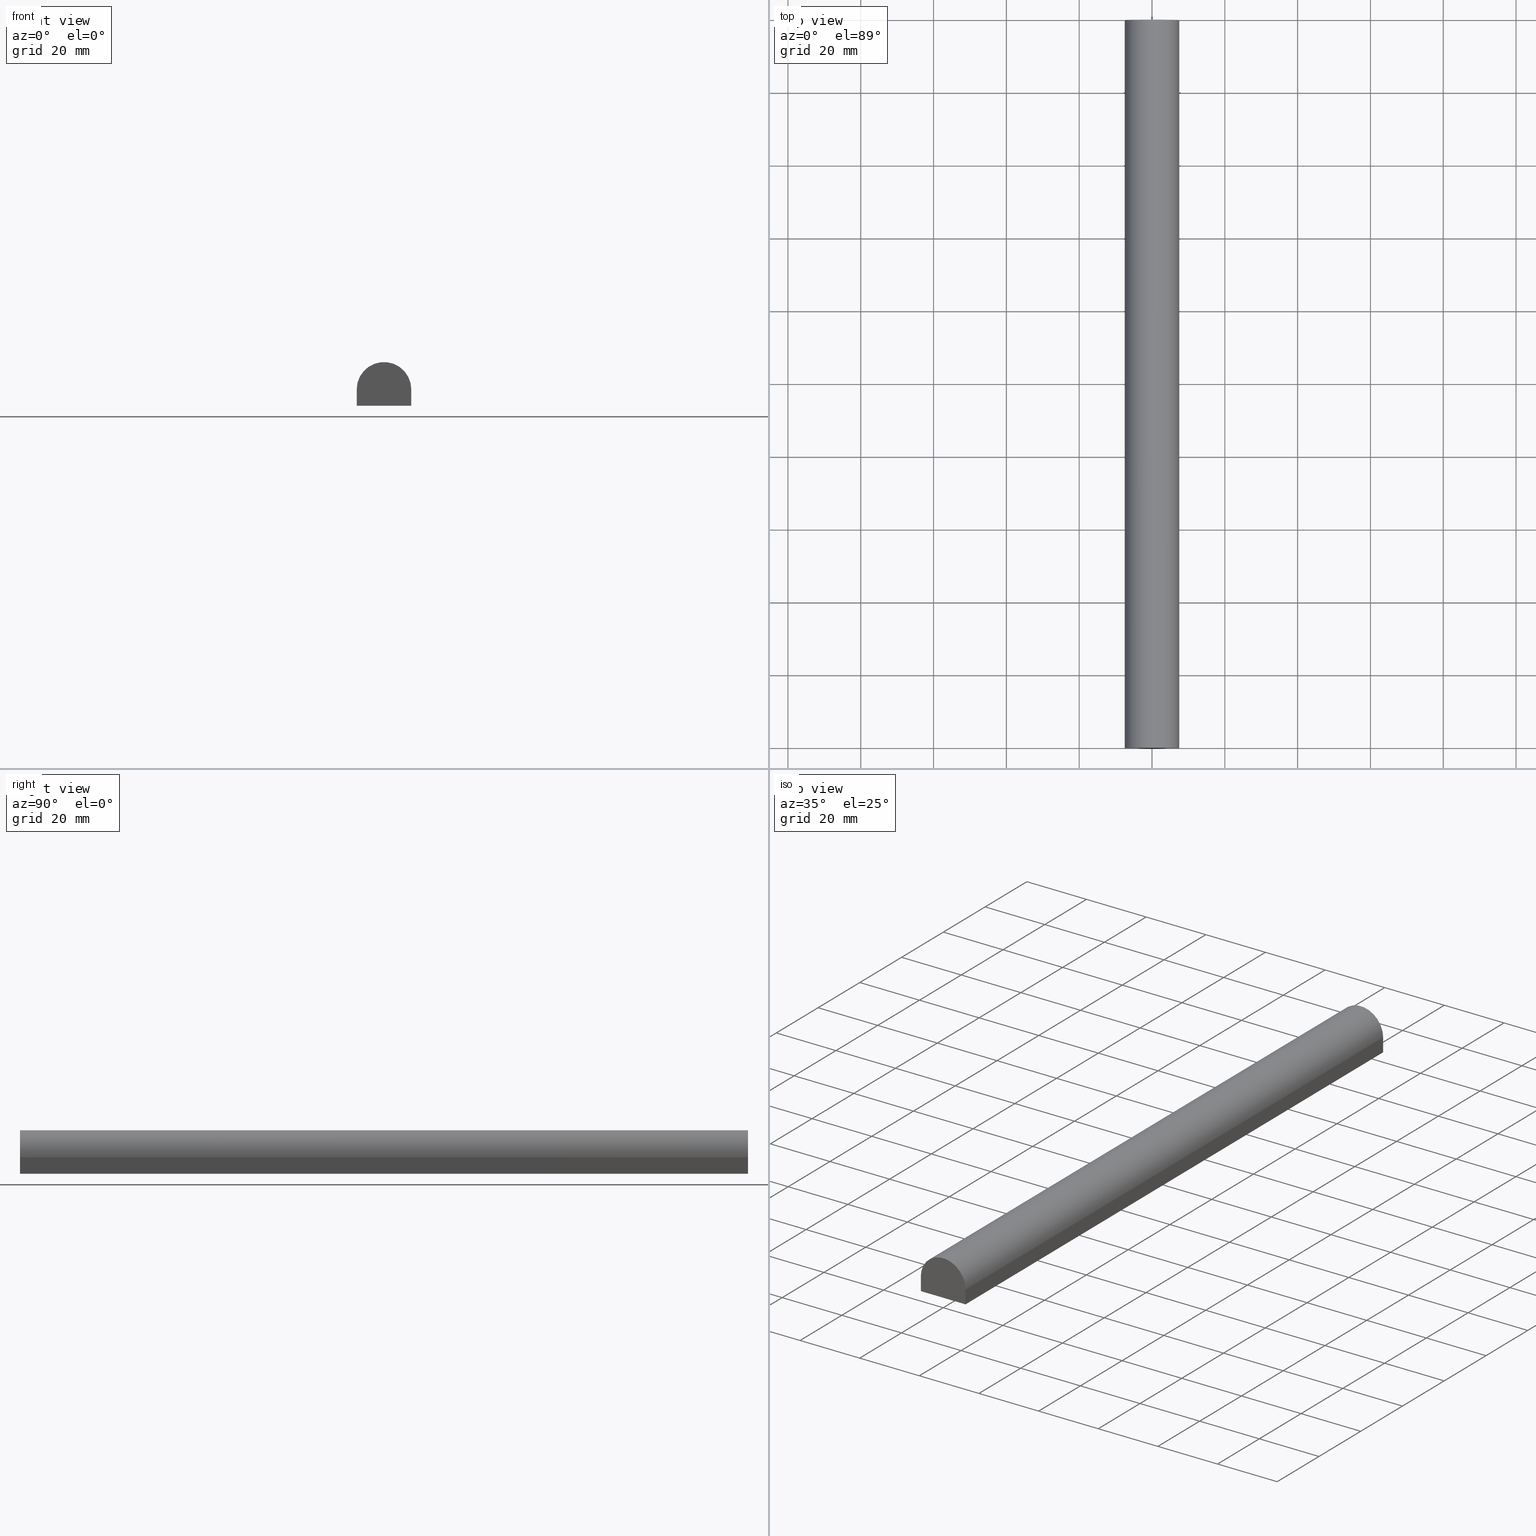
[diagram: canonical four-view strip — front | top / right | iso, engineering-drawing reading convention]
A machine part, canonical four-view strip (front | top / right | iso — engineering-drawing reading convention). The complete STEP part file that produces these views, byte-faithful:
ISO-10303-21;
HEADER;
FILE_DESCRIPTION (( 'STEP AP214' ),
    '1' );
FILE_NAME ('TM_341_8.STEP',
    '2016-05-10T03:10:23',
    ( '' ),
    ( '' ),
    'SwSTEP 2.0',
    'SolidWorks 2015',
    '' );
FILE_SCHEMA (( 'AUTOMOTIVE_DESIGN' ));
ENDSEC;

DATA;
#1 = APPLICATION_PROTOCOL_DEFINITION ( 'draft international standard', 'automotive_design', 1998, #189 ) ;
#2 = DIRECTION ( 'NONE',  ( 0.0000000000000000000, 0.0000000000000000000, 1.000000000000000000 ) ) ;
#3 = ORIENTED_EDGE ( 'NONE', *, *, #214, .F. ) ;
#4 = VECTOR ( 'NONE', #222, 1000.000000000000000 ) ;
#5 =( NAMED_UNIT ( * ) SI_UNIT ( $, .STERADIAN. ) SOLID_ANGLE_UNIT ( ) );
#6 = VECTOR ( 'NONE', #116, 1000.000000000000000 ) ;
#7 = DIRECTION ( 'NONE',  ( -0.0000000000000000000, -1.000000000000000000, -0.0000000000000000000 ) ) ;
#8 = AXIS2_PLACEMENT_3D ( 'NONE', #240, #119, #223 ) ;
#9 = UNCERTAINTY_MEASURE_WITH_UNIT (LENGTH_MEASURE( 1.000000000000000100E-005 ), #124, 'distance_accuracy_value', 'NONE');
#10 = CIRCLE ( 'NONE', #114, 7.500000000000000000 ) ;
#11 = PRODUCT_RELATED_PRODUCT_CATEGORY ( 'part', '', ( #105 ) ) ;
#12 = FACE_OUTER_BOUND ( 'NONE', #16, .T. ) ;
#13 = ORIENTED_EDGE ( 'NONE', *, *, #25, .F. ) ;
#14 = CIRCLE ( 'NONE', #75, 7.500000000000000000 ) ;
#15 = CARTESIAN_POINT ( 'NONE',  ( 7.500000000000000000, 0.0000000000000000000, -1.500000000000000000 ) ) ;
#16 = EDGE_LOOP ( 'NONE', ( #93, #27, #133, #49 ) ) ;
#17 = APPLICATION_CONTEXT ( 'automotive_design' ) ;
#18 = FACE_OUTER_BOUND ( 'NONE', #198, .T. ) ;
#19 =( GEOMETRIC_REPRESENTATION_CONTEXT ( 3 ) GLOBAL_UNCERTAINTY_ASSIGNED_CONTEXT ( ( #34 ) ) GLOBAL_UNIT_ASSIGNED_CONTEXT ( ( #96, #205, #79 ) ) REPRESENTATION_CONTEXT ( 'NONE', 'WORKASPACE' ) );
#20 = PRODUCT_CONTEXT ( 'NONE', #17, 'mechanical' ) ;
#21 = PLANE ( 'NONE',  #161 ) ;
#22 = EDGE_CURVE ( 'NONE', #219, #141, #211, .T. ) ;
#23 = CARTESIAN_POINT ( 'NONE',  ( 0.0000000000000000000, 0.0000000000000000000, 0.0000000000000000000 ) ) ;
#24 = CARTESIAN_POINT ( 'NONE',  ( 7.500000000000000000, 1000.000000000000000, -1.500000000000000000 ) ) ;
#25 = EDGE_CURVE ( 'NONE', #183, #89, #14, .T. ) ;
#26 =( LENGTH_UNIT ( ) NAMED_UNIT ( * ) SI_UNIT ( .MILLI., .METRE. ) );
#27 = ORIENTED_EDGE ( 'NONE', *, *, #131, .F. ) ;
#28 = ORIENTED_EDGE ( 'NONE', *, *, #60, .T. ) ;
#29 = SURFACE_STYLE_FILL_AREA ( #98 ) ;
#30 = AXIS2_PLACEMENT_3D ( 'NONE', #207, #57, #166 ) ;
#31 = PRODUCT_DEFINITION_SHAPE ( 'NONE', 'NONE',  #73 ) ;
#32 = PRESENTATION_STYLE_ASSIGNMENT (( #227 ) ) ;
#33 = EDGE_CURVE ( 'NONE', #89, #69, #125, .T. ) ;
#34 = UNCERTAINTY_MEASURE_WITH_UNIT (LENGTH_MEASURE( 1.000000000000000100E-005 ), #96, 'distance_accuracy_value', 'NONE');
#35 = ORIENTED_EDGE ( 'NONE', *, *, #88, .F. ) ;
#36 = VERTEX_POINT ( 'NONE', #230 ) ;
#37 = DIRECTION ( 'NONE',  ( 1.000000000000000000, 0.0000000000000000000, 0.0000000000000000000 ) ) ;
#38 =( REPRESENTATION_RELATIONSHIP ('NONE','NONE', #153, #108 ) REPRESENTATION_RELATIONSHIP_WITH_TRANSFORMATION ( #52 )SHAPE_REPRESENTATION_RELATIONSHIP( ) );
#39 = DIRECTION ( 'NONE',  ( 1.000000000000000000, 0.0000000000000000000, 0.0000000000000000000 ) ) ;
#40 = VECTOR ( 'NONE', #136, 1000.000000000000000 ) ;
#41 =( NAMED_UNIT ( * ) SI_UNIT ( $, .STERADIAN. ) SOLID_ANGLE_UNIT ( ) );
#42 = DIRECTION ( 'NONE',  ( 0.0000000000000000000, 0.0000000000000000000, 1.000000000000000000 ) ) ;
#43 =( NAMED_UNIT ( * ) SI_UNIT ( $, .STERADIAN. ) SOLID_ANGLE_UNIT ( ) );
#44 = AXIS2_PLACEMENT_3D ( 'NONE', #192, #46, #103 ) ;
#45 = VECTOR ( 'NONE', #47, 1000.000000000000000 ) ;
#46 = DIRECTION ( 'NONE',  ( -1.000000000000000000, 0.0000000000000000000, 0.0000000000000000000 ) ) ;
#47 = DIRECTION ( 'NONE',  ( 1.000000000000000000, -0.0000000000000000000, -0.0000000000000000000 ) ) ;
#48 = PRODUCT_DEFINITION ( 'UNKNOWN', '', #112, #194 ) ;
#49 = ORIENTED_EDGE ( 'NONE', *, *, #88, .T. ) ;
#50 = ORIENTED_EDGE ( 'NONE', *, *, #131, .T. ) ;
#51 = PRODUCT ( 'TM_341_8', 'TM_341_8', '', ( #121 ) ) ;
#52 = ITEM_DEFINED_TRANSFORMATION ( 'NONE', 'NONE', #8,  #201 ) ;
#53 = PRESENTATION_LAYER_ASSIGNMENT (  '', '', ( #70 ) ) ;
#54 = COLOUR_RGB ( '',0.7921568627450980000, 0.8196078431372548800, 0.9333333333333333500 ) ;
#55 = CARTESIAN_POINT ( 'NONE',  ( 7.500000000000000000, 200.0000000000000000, 0.0000000000000000000 ) ) ;
#56 = CARTESIAN_POINT ( 'NONE',  ( 7.500000000000000000, 0.0000000000000000000, -6.000000000000000000 ) ) ;
#57 = DIRECTION ( 'NONE',  ( 0.0000000000000000000, 0.0000000000000000000, 1.000000000000000000 ) ) ;
#58 = DIRECTION ( 'NONE',  ( 0.0000000000000000000, -1.000000000000000000, 0.0000000000000000000 ) ) ;
#59 = CARTESIAN_POINT ( 'NONE',  ( 0.0000000000000000000, 0.0000000000000000000, -1.500000000000000000 ) ) ;
#60 = EDGE_CURVE ( 'NONE', #36, #219, #115, .T. ) ;
#61 = LINE ( 'NONE', #117, #4 ) ;
#62 = ADVANCED_FACE ( 'NONE', ( #110 ), #126, .T. ) ;
#63 = DIRECTION ( 'NONE',  ( 0.0000000000000000000, 0.0000000000000000000, 1.000000000000000000 ) ) ;
#64 = CARTESIAN_POINT ( 'NONE',  ( -7.500000000000000000, 200.0000000000000000, 0.0000000000000000000 ) ) ;
#65 = CARTESIAN_POINT ( 'NONE',  ( 0.0000000000000000000, 0.0000000000000000000, 0.0000000000000000000 ) ) ;
#66 = PRODUCT_DEFINITION_SHAPE ( 'NONE', 'NONE',  #241 ) ;
#67 = VECTOR ( 'NONE', #106, 1000.000000000000000 ) ;
#68 = CARTESIAN_POINT ( 'NONE',  ( -7.500000000000000000, 200.0000000000000000, -1.500000000000000000 ) ) ;
#69 = VERTEX_POINT ( 'NONE', #174 ) ;
#70 = STYLED_ITEM ( 'NONE', ( #218 ), #128 ) ;
#71 = LINE ( 'NONE', #24, #157 ) ;
#72 = COLOUR_RGB ( '',0.7921568627450980000, 0.8196078431372548800, 0.9333333333333333500 ) ;
#73 = PRODUCT_DEFINITION ( 'UNKNOWN', '', #87, #74 ) ;
#74 = PRODUCT_DEFINITION_CONTEXT ( 'detailed design', #225, 'design' ) ;
#75 = AXIS2_PLACEMENT_3D ( 'NONE', #226, #7, #197 ) ;
#76 = VECTOR ( 'NONE', #187, 1000.000000000000000 ) ;
#77 = CARTESIAN_POINT ( 'NONE',  ( 0.0000000000000000000, 0.0000000000000000000, 0.0000000000000000000 ) ) ;
#78 = CARTESIAN_POINT ( 'NONE',  ( 7.500000000000000000, 1000.000000000000000, -6.000000000000000000 ) ) ;
#79 =( NAMED_UNIT ( * ) SI_UNIT ( $, .STERADIAN. ) SOLID_ANGLE_UNIT ( ) );
#80 = SURFACE_STYLE_USAGE ( .BOTH. , #206 ) ;
#81 = FILL_AREA_STYLE_COLOUR ( '', #54 ) ;
#82 = AXIS2_PLACEMENT_3D ( 'NONE', #172, #58, #190 ) ;
#83 = UNCERTAINTY_MEASURE_WITH_UNIT (LENGTH_MEASURE( 1.000000000000000100E-005 ), #26, 'distance_accuracy_value', 'NONE');
#84 = EDGE_LOOP ( 'NONE', ( #159, #173, #28, #135 ) ) ;
#85 = VECTOR ( 'NONE', #94, 1000.000000000000000 ) ;
#86 = ADVANCED_FACE ( 'NONE', ( #18 ), #210, .T. ) ;
#87 = PRODUCT_DEFINITION_FORMATION_WITH_SPECIFIED_SOURCE ( 'ANY', '', #51, .NOT_KNOWN. ) ;
#88 = EDGE_CURVE ( 'NONE', #183, #217, #71, .T. ) ;
#89 = VERTEX_POINT ( 'NONE', #68 ) ;
#90 = PRODUCT_DEFINITION_SHAPE ( 'NONE', 'NONE',  #48 ) ;
#91 = EDGE_LOOP ( 'NONE', ( #184, #233, #234, #50 ) ) ;
#92 = MECHANICAL_DESIGN_GEOMETRIC_PRESENTATION_REPRESENTATION (  '', ( #70 ), #109 ) ;
#93 = ORIENTED_EDGE ( 'NONE', *, *, #178, .F. ) ;
#94 = DIRECTION ( 'NONE',  ( 1.000000000000000000, -0.0000000000000000000, -0.0000000000000000000 ) ) ;
#95 = CARTESIAN_POINT ( 'NONE',  ( 7.500000000000000000, 1000.000000000000000, -6.000000000000000000 ) ) ;
#96 =( LENGTH_UNIT ( ) NAMED_UNIT ( * ) SI_UNIT ( .MILLI., .METRE. ) );
#97 = PRODUCT_RELATED_PRODUCT_CATEGORY ( 'part', '', ( #51 ) ) ;
#98 = FILL_AREA_STYLE ('',( #120 ) ) ;
#99 = APPLICATION_PROTOCOL_DEFINITION ( 'draft international standard', 'automotive_design', 1998, #225 ) ;
#100 = CARTESIAN_POINT ( 'NONE',  ( 7.500000000000000000, 200.0000000000000000, -6.000000000000000000 ) ) ;
#101 = EDGE_CURVE ( 'NONE', #217, #36, #10, .T. ) ;
#102 = ORIENTED_EDGE ( 'NONE', *, *, #145, .T. ) ;
#103 = DIRECTION ( 'NONE',  ( 0.0000000000000000000, 0.0000000000000000000, 1.000000000000000000 ) ) ;
#104 = SHAPE_DEFINITION_REPRESENTATION ( #90, #108 ) ;
#105 = PRODUCT ( 'rubber foam', 'rubber foam', '', ( #20 ) ) ;
#106 = DIRECTION ( 'NONE',  ( -0.0000000000000000000, -0.0000000000000000000, -1.000000000000000000 ) ) ;
#107 = ADVANCED_FACE ( 'NONE', ( #165 ), #134, .T. ) ;
#108 = SHAPE_REPRESENTATION ( 'rubber foam', ( #201 ), #180 ) ;
#109 =( GEOMETRIC_REPRESENTATION_CONTEXT ( 3 ) GLOBAL_UNCERTAINTY_ASSIGNED_CONTEXT ( ( #132 ) ) GLOBAL_UNIT_ASSIGNED_CONTEXT ( ( #188, #167, #41 ) ) REPRESENTATION_CONTEXT ( 'NONE', 'WORKASPACE' ) );
#110 = FACE_OUTER_BOUND ( 'NONE', #158, .T. ) ;
#111 = ORIENTED_EDGE ( 'NONE', *, *, #25, .T. ) ;
#112 = PRODUCT_DEFINITION_FORMATION_WITH_SPECIFIED_SOURCE ( 'ANY', '', #105, .NOT_KNOWN. ) ;
#113 = EDGE_CURVE ( 'NONE', #69, #229, #129, .T. ) ;
#114 = AXIS2_PLACEMENT_3D ( 'NONE', #59, #169, #42 ) ;
#115 = LINE ( 'NONE', #208, #202 ) ;
#116 = DIRECTION ( 'NONE',  ( 0.0000000000000000000, -1.000000000000000000, 0.0000000000000000000 ) ) ;
#117 = CARTESIAN_POINT ( 'NONE',  ( -7.500000000000000000, 1000.000000000000000, -6.000000000000000000 ) ) ;
#118 = DIRECTION ( 'NONE',  ( -1.000000000000000000, 0.0000000000000000000, 0.0000000000000000000 ) ) ;
#119 = DIRECTION ( 'NONE',  ( 0.0000000000000000000, 0.0000000000000000000, 1.000000000000000000 ) ) ;
#120 = FILL_AREA_STYLE_COLOUR ( '', #72 ) ;
#121 = PRODUCT_CONTEXT ( 'NONE', #189, 'mechanical' ) ;
#122 = DIRECTION ( 'NONE',  ( -0.0000000000000000000, -0.0000000000000000000, 1.000000000000000000 ) ) ;
#123 = DIRECTION ( 'NONE',  ( 0.0000000000000000000, -1.000000000000000000, 0.0000000000000000000 ) ) ;
#124 =( LENGTH_UNIT ( ) NAMED_UNIT ( * ) SI_UNIT ( .MILLI., .METRE. ) );
#125 = LINE ( 'NONE', #64, #67 ) ;
#126 = PLANE ( 'NONE',  #160 ) ;
#127 = CLOSED_SHELL ( 'NONE', ( #144, #107, #86, #130, #62, #213 ) ) ;
#128 = MANIFOLD_SOLID_BREP ( '���߰�1', #127 ) ;
#129 = LINE ( 'NONE', #154, #85 ) ;
#130 = ADVANCED_FACE ( 'NONE', ( #231 ), #224, .T. ) ;
#131 = EDGE_CURVE ( 'NONE', #229, #141, #163, .T. ) ;
#132 = UNCERTAINTY_MEASURE_WITH_UNIT (LENGTH_MEASURE( 1.000000000000000100E-005 ), #188, 'distance_accuracy_value', 'NONE');
#133 = ORIENTED_EDGE ( 'NONE', *, *, #215, .T. ) ;
#134 = CYLINDRICAL_SURFACE ( 'NONE', #82, 7.500000000000000000 ) ;
#135 = ORIENTED_EDGE ( 'NONE', *, *, #22, .T. ) ;
#136 = DIRECTION ( 'NONE',  ( -0.0000000000000000000, -0.0000000000000000000, 1.000000000000000000 ) ) ;
#137 = SHAPE_REPRESENTATION_RELATIONSHIP ( 'NONE' , 'NONE' ,  #108, #221 ) ;
#138 = CARTESIAN_POINT ( 'NONE',  ( -7.500000000000000000, 1000.000000000000000, -6.000000000000000000 ) ) ;
#139 = DIRECTION ( 'NONE',  ( 1.000000000000000000, 0.0000000000000000000, 0.0000000000000000000 ) ) ;
#140 =( NAMED_UNIT ( * ) PLANE_ANGLE_UNIT ( ) SI_UNIT ( $, .RADIAN. ) );
#141 = VERTEX_POINT ( 'NONE', #56 ) ;
#142 =( NAMED_UNIT ( * ) PLANE_ANGLE_UNIT ( ) SI_UNIT ( $, .RADIAN. ) );
#143 = DIRECTION ( 'NONE',  ( -0.0000000000000000000, -0.0000000000000000000, -1.000000000000000000 ) ) ;
#144 = ADVANCED_FACE ( 'NONE', ( #12 ), #21, .T. ) ;
#145 = EDGE_CURVE ( 'NONE', #69, #219, #61, .T. ) ;
#146 = AXIS2_PLACEMENT_3D ( 'NONE', #138, #239, #118 ) ;
#147 = CONTEXT_DEPENDENT_SHAPE_REPRESENTATION ( #38, #66 ) ;
#148 = SHAPE_DEFINITION_REPRESENTATION ( #31, #153 ) ;
#149 = APPLICATION_PROTOCOL_DEFINITION ( 'draft international standard', 'automotive_design', 1998, #168 ) ;
#150 = DIRECTION ( 'NONE',  ( 0.0000000000000000000, 0.0000000000000000000, -1.000000000000000000 ) ) ;
#151 = ORIENTED_EDGE ( 'NONE', *, *, #33, .T. ) ;
#152 = APPLICATION_PROTOCOL_DEFINITION ( 'draft international standard', 'automotive_design', 1998, #17 ) ;
#153 = SHAPE_REPRESENTATION ( 'TM_341_8', ( #30, #8 ), #19 ) ;
#154 = CARTESIAN_POINT ( 'NONE',  ( 0.0000000000000000000, 200.0000000000000000, -6.000000000000000000 ) ) ;
#155 = CARTESIAN_POINT ( 'NONE',  ( 0.0000000000000000000, 200.0000000000000000, 0.0000000000000000000 ) ) ;
#156 = DIRECTION ( 'NONE',  ( 1.000000000000000000, 0.0000000000000000000, 0.0000000000000000000 ) ) ;
#157 = VECTOR ( 'NONE', #123, 1000.000000000000000 ) ;
#158 = EDGE_LOOP ( 'NONE', ( #179, #228, #212, #13 ) ) ;
#159 = ORIENTED_EDGE ( 'NONE', *, *, #178, .T. ) ;
#160 = AXIS2_PLACEMENT_3D ( 'NONE', #155, #171, #156 ) ;
#161 = AXIS2_PLACEMENT_3D ( 'NONE', #95, #39, #150 ) ;
#162 = EDGE_LOOP ( 'NONE', ( #236, #35, #111, #204 ) ) ;
#163 = LINE ( 'NONE', #78, #76 ) ;
#164 = DIRECTION ( 'NONE',  ( -0.0000000000000000000, 1.000000000000000000, 0.0000000000000000000 ) ) ;
#165 = FACE_OUTER_BOUND ( 'NONE', #162, .T. ) ;
#166 = DIRECTION ( 'NONE',  ( 1.000000000000000000, 0.0000000000000000000, 0.0000000000000000000 ) ) ;
#167 =( NAMED_UNIT ( * ) PLANE_ANGLE_UNIT ( ) SI_UNIT ( $, .RADIAN. ) );
#168 = APPLICATION_CONTEXT ( 'automotive_design' ) ;
#169 = DIRECTION ( 'NONE',  ( -0.0000000000000000000, -1.000000000000000000, -0.0000000000000000000 ) ) ;
#170 = DIRECTION ( 'NONE',  ( 1.000000000000000000, 0.0000000000000000000, 0.0000000000000000000 ) ) ;
#171 = DIRECTION ( 'NONE',  ( -0.0000000000000000000, 1.000000000000000000, 0.0000000000000000000 ) ) ;
#172 = CARTESIAN_POINT ( 'NONE',  ( 0.0000000000000000000, 1000.000000000000000, -1.500000000000000000 ) ) ;
#173 = ORIENTED_EDGE ( 'NONE', *, *, #101, .T. ) ;
#174 = CARTESIAN_POINT ( 'NONE',  ( -7.500000000000000000, 200.0000000000000000, -6.000000000000000000 ) ) ;
#175 = LINE ( 'NONE', #55, #182 ) ;
#176 = PRESENTATION_LAYER_ASSIGNMENT (  '', '', ( #216 ) ) ;
#177 = LINE ( 'NONE', #238, #40 ) ;
#178 = EDGE_CURVE ( 'NONE', #141, #217, #177, .T. ) ;
#179 = ORIENTED_EDGE ( 'NONE', *, *, #215, .F. ) ;
#180 =( GEOMETRIC_REPRESENTATION_CONTEXT ( 3 ) GLOBAL_UNCERTAINTY_ASSIGNED_CONTEXT ( ( #9 ) ) GLOBAL_UNIT_ASSIGNED_CONTEXT ( ( #124, #140, #5 ) ) REPRESENTATION_CONTEXT ( 'NONE', 'WORKASPACE' ) );
#181 = ORIENTED_EDGE ( 'NONE', *, *, #60, .F. ) ;
#182 = VECTOR ( 'NONE', #122, 1000.000000000000000 ) ;
#183 = VERTEX_POINT ( 'NONE', #185 ) ;
#184 = ORIENTED_EDGE ( 'NONE', *, *, #22, .F. ) ;
#185 = CARTESIAN_POINT ( 'NONE',  ( 7.500000000000000000, 200.0000000000000000, -1.500000000000000000 ) ) ;
#186 = MECHANICAL_DESIGN_GEOMETRIC_PRESENTATION_REPRESENTATION (  '', ( #216 ), #199 ) ;
#187 = DIRECTION ( 'NONE',  ( 0.0000000000000000000, -1.000000000000000000, 0.0000000000000000000 ) ) ;
#188 =( LENGTH_UNIT ( ) NAMED_UNIT ( * ) SI_UNIT ( .MILLI., .METRE. ) );
#189 = APPLICATION_CONTEXT ( 'automotive_design' ) ;
#190 = DIRECTION ( 'NONE',  ( 0.0000000000000000000, 0.0000000000000000000, -1.000000000000000000 ) ) ;
#191 = FILL_AREA_STYLE ('',( #81 ) ) ;
#192 = CARTESIAN_POINT ( 'NONE',  ( -7.500000000000000000, 1000.000000000000000, -1.500000000000000000 ) ) ;
#193 = AXIS2_PLACEMENT_3D ( 'NONE', #77, #164, #37 ) ;
#194 = PRODUCT_DEFINITION_CONTEXT ( 'detailed design', #168, 'design' ) ;
#195 = CARTESIAN_POINT ( 'NONE',  ( 0.0000000000000000000, 0.0000000000000000000, -6.000000000000000000 ) ) ;
#196 = LINE ( 'NONE', #237, #6 ) ;
#197 = DIRECTION ( 'NONE',  ( 0.0000000000000000000, 0.0000000000000000000, 1.000000000000000000 ) ) ;
#198 = EDGE_LOOP ( 'NONE', ( #181, #3, #151, #102 ) ) ;
#199 =( GEOMETRIC_REPRESENTATION_CONTEXT ( 3 ) GLOBAL_UNCERTAINTY_ASSIGNED_CONTEXT ( ( #83 ) ) GLOBAL_UNIT_ASSIGNED_CONTEXT ( ( #26, #142, #43 ) ) REPRESENTATION_CONTEXT ( 'NONE', 'WORKASPACE' ) );
#200 = FACE_OUTER_BOUND ( 'NONE', #84, .T. ) ;
#201 = AXIS2_PLACEMENT_3D ( 'NONE', #65, #63, #170 ) ;
#202 = VECTOR ( 'NONE', #143, 1000.000000000000000 ) ;
#203 = PLANE ( 'NONE',  #193 ) ;
#204 = ORIENTED_EDGE ( 'NONE', *, *, #214, .T. ) ;
#205 =( NAMED_UNIT ( * ) PLANE_ANGLE_UNIT ( ) SI_UNIT ( $, .RADIAN. ) );
#206 = SURFACE_SIDE_STYLE ('',( #29 ) ) ;
#207 = CARTESIAN_POINT ( 'NONE',  ( 0.0000000000000000000, 0.0000000000000000000, 0.0000000000000000000 ) ) ;
#208 = CARTESIAN_POINT ( 'NONE',  ( -7.500000000000000000, 0.0000000000000000000, 0.0000000000000000000 ) ) ;
#209 = SURFACE_SIDE_STYLE ('',( #232 ) ) ;
#210 = PLANE ( 'NONE',  #44 ) ;
#211 = LINE ( 'NONE', #195, #45 ) ;
#212 = ORIENTED_EDGE ( 'NONE', *, *, #33, .F. ) ;
#213 = ADVANCED_FACE ( 'NONE', ( #200 ), #203, .F. ) ;
#214 = EDGE_CURVE ( 'NONE', #89, #36, #196, .T. ) ;
#215 = EDGE_CURVE ( 'NONE', #229, #183, #175, .T. ) ;
#216 = STYLED_ITEM ( 'NONE', ( #32 ), #221 ) ;
#217 = VERTEX_POINT ( 'NONE', #15 ) ;
#218 = PRESENTATION_STYLE_ASSIGNMENT (( #80 ) ) ;
#219 = VERTEX_POINT ( 'NONE', #220 ) ;
#220 = CARTESIAN_POINT ( 'NONE',  ( -7.500000000000000000, 0.0000000000000000000, -6.000000000000000000 ) ) ;
#221 = ADVANCED_BREP_SHAPE_REPRESENTATION ( '', ( #128, #201 ), #180 ) ;
#222 = DIRECTION ( 'NONE',  ( 0.0000000000000000000, -1.000000000000000000, 0.0000000000000000000 ) ) ;
#223 = DIRECTION ( 'NONE',  ( 1.000000000000000000, 0.0000000000000000000, 0.0000000000000000000 ) ) ;
#224 = PLANE ( 'NONE',  #146 ) ;
#225 = APPLICATION_CONTEXT ( 'automotive_design' ) ;
#226 = CARTESIAN_POINT ( 'NONE',  ( 0.0000000000000000000, 200.0000000000000000, -1.500000000000000000 ) ) ;
#227 = SURFACE_STYLE_USAGE ( .BOTH. , #209 ) ;
#228 = ORIENTED_EDGE ( 'NONE', *, *, #113, .F. ) ;
#229 = VERTEX_POINT ( 'NONE', #100 ) ;
#230 = CARTESIAN_POINT ( 'NONE',  ( -7.500000000000000000, 0.0000000000000000000, -1.500000000000000000 ) ) ;
#231 = FACE_OUTER_BOUND ( 'NONE', #91, .T. ) ;
#232 = SURFACE_STYLE_FILL_AREA ( #191 ) ;
#233 = ORIENTED_EDGE ( 'NONE', *, *, #145, .F. ) ;
#234 = ORIENTED_EDGE ( 'NONE', *, *, #113, .T. ) ;
#235 = AXIS2_PLACEMENT_3D ( 'NONE', #23, #2, #139 ) ;
#236 = ORIENTED_EDGE ( 'NONE', *, *, #101, .F. ) ;
#237 = CARTESIAN_POINT ( 'NONE',  ( -7.500000000000000000, 1000.000000000000000, -1.500000000000000000 ) ) ;
#238 = CARTESIAN_POINT ( 'NONE',  ( 7.500000000000000000, 0.0000000000000000000, 0.0000000000000000000 ) ) ;
#239 = DIRECTION ( 'NONE',  ( 0.0000000000000000000, 0.0000000000000000000, -1.000000000000000000 ) ) ;
#240 = CARTESIAN_POINT ( 'NONE',  ( 0.0000000000000000000, 0.0000000000000000000, 0.0000000000000000000 ) ) ;
#241 = NEXT_ASSEMBLY_USAGE_OCCURRENCE ( 'NAUO1', ' ', ' ', #73, #48, $ ) ;
ENDSEC;
END-ISO-10303-21;
